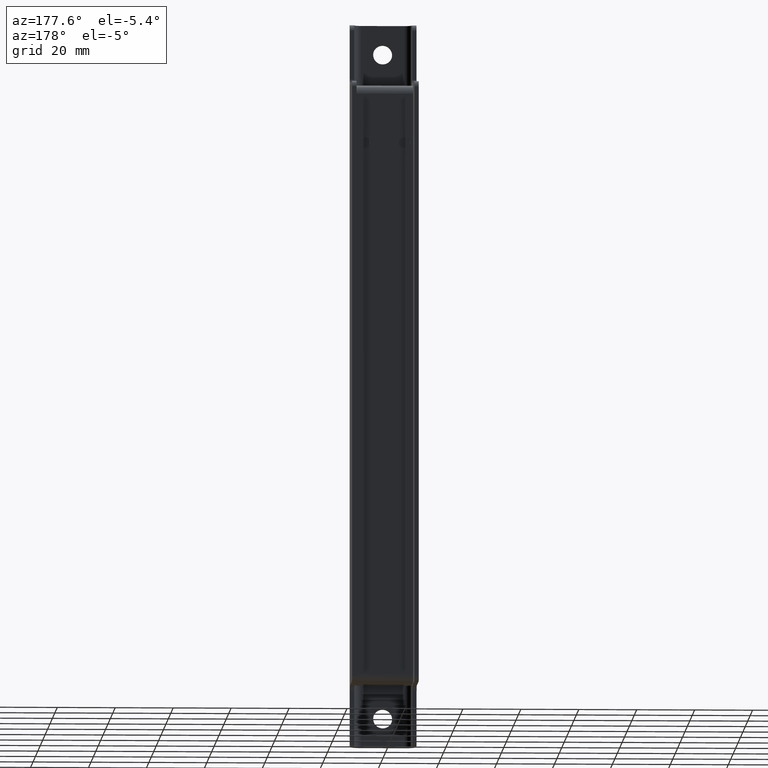
[diagram: clean part render]
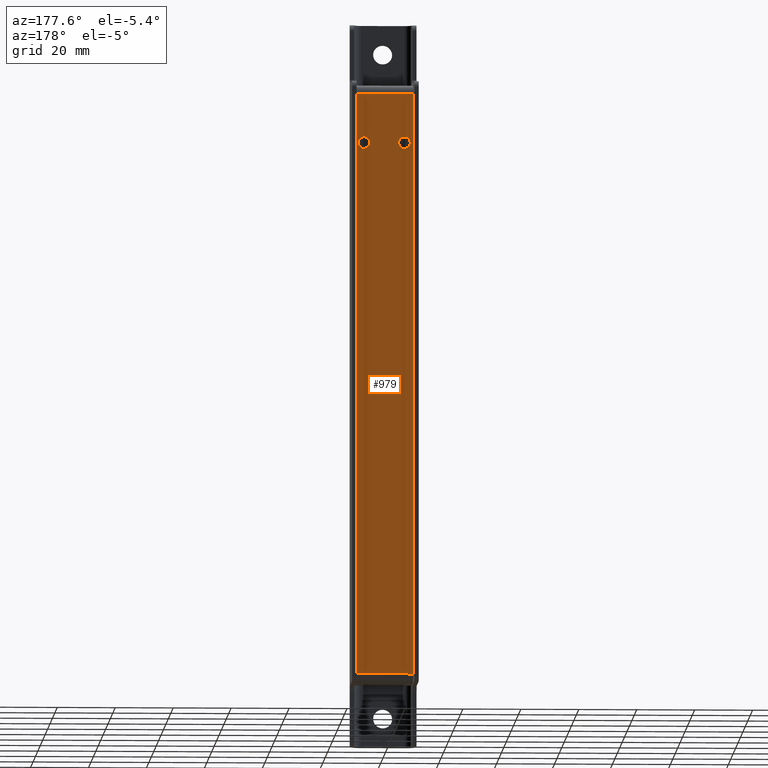
[diagram: same view with one face highlighted and labeled with its STEP entity id]
A machine part, auxiliary view. The second image highlights one B-rep face of the part: STEP entity #979.
In plain terms, the highlighted planar face has unit normal (0, 1, -0).
Its self-contained STEP definition (entity closure, byte-faithful):
#64=CIRCLE('',#1066,2.);
#65=CIRCLE('',#1067,2.);
#148=ORIENTED_EDGE('',*,*,#434,.F.);
#149=ORIENTED_EDGE('',*,*,#435,.F.);
#150=ORIENTED_EDGE('',*,*,#436,.T.);
#151=ORIENTED_EDGE('',*,*,#437,.T.);
#152=ORIENTED_EDGE('',*,*,#438,.T.);
#153=ORIENTED_EDGE('',*,*,#439,.T.);
#434=EDGE_CURVE('',#576,#576,#64,.T.);
#435=EDGE_CURVE('',#577,#577,#65,.T.);
#436=EDGE_CURVE('',#578,#579,#658,.T.);
#437=EDGE_CURVE('',#579,#580,#659,.T.);
#438=EDGE_CURVE('',#580,#581,#660,.T.);
#439=EDGE_CURVE('',#581,#578,#661,.T.);
#576=VERTEX_POINT('',#1563);
#577=VERTEX_POINT('',#1565);
#578=VERTEX_POINT('',#1567);
#579=VERTEX_POINT('',#1568);
#580=VERTEX_POINT('',#1570);
#581=VERTEX_POINT('',#1572);
#658=LINE('',#1566,#746);
#659=LINE('',#1569,#747);
#660=LINE('',#1571,#748);
#661=LINE('',#1573,#749);
#746=VECTOR('',#1234,1000.);
#747=VECTOR('',#1235,1000.);
#748=VECTOR('',#1236,1000.);
#749=VECTOR('',#1237,1000.);
#819=EDGE_LOOP('',(#148));
#820=EDGE_LOOP('',(#149));
#821=EDGE_LOOP('',(#150,#151,#152,#153));
#887=FACE_BOUND('',#819,.T.);
#888=FACE_BOUND('',#820,.T.);
#889=FACE_BOUND('',#821,.T.);
#950=PLANE('',#1065);
#979=ADVANCED_FACE('',(#887,#888,#889),#950,.T.);
#1065=AXIS2_PLACEMENT_3D('',#1561,#1228,#1229);
#1066=AXIS2_PLACEMENT_3D('',#1562,#1230,#1231);
#1067=AXIS2_PLACEMENT_3D('',#1564,#1232,#1233);
#1228=DIRECTION('',(4.06163832661068E-16,1.,-3.32494788514936E-15));
#1229=DIRECTION('',(-1.,4.06163832661068E-16,6.76398658185478E-32));
#1230=DIRECTION('',(4.06163832661068E-16,1.,-3.32698173895069E-15));
#1231=DIRECTION('',(9.21833731195405E-17,-3.32698173895069E-15,-1.));
#1232=DIRECTION('',(4.06163832661068E-16,1.,-3.32698173895069E-15));
#1233=DIRECTION('',(9.21833731195405E-17,-3.32698173895069E-15,-1.));
#1234=DIRECTION('',(-1.21257418434899E-16,-3.32494788514936E-15,-1.));
#1235=DIRECTION('',(-1.,4.06163832661068E-16,6.76398658185534E-32));
#1236=DIRECTION('',(1.21257418434899E-16,3.32494788514936E-15,1.));
#1237=DIRECTION('',(1.,-4.06163832661068E-16,-6.76398658185534E-32));
#1561=CARTESIAN_POINT('',(4.66701312594012E-15,-10.9999999999987,-3.78058567638503E-14));
#1562=CARTESIAN_POINT('',(-7.,-10.9999999999984,83.5));
#1563=CARTESIAN_POINT('',(-7.,-10.9999999999984,81.5));
#1564=CARTESIAN_POINT('',(7.,-10.9999999999984,83.5));
#1565=CARTESIAN_POINT('',(7.,-10.9999999999984,81.5));
#1566=CARTESIAN_POINT('',(10.,-10.9999999999975,350.5));
#1567=CARTESIAN_POINT('',(9.99999999999998,-10.9999999999984,100.5));
#1568=CARTESIAN_POINT('',(9.99999999999995,-10.999999999999,-100.5));
#1569=CARTESIAN_POINT('',(-10.,-10.999999999999,-100.5));
#1570=CARTESIAN_POINT('',(-10.,-10.999999999999,-100.5));
#1571=CARTESIAN_POINT('',(-9.99999999999995,-10.9999999999975,350.5));
#1572=CARTESIAN_POINT('',(-9.99999999999998,-10.9999999999984,100.5));
#1573=CARTESIAN_POINT('',(9.99999999999997,-10.9999999999984,100.5));